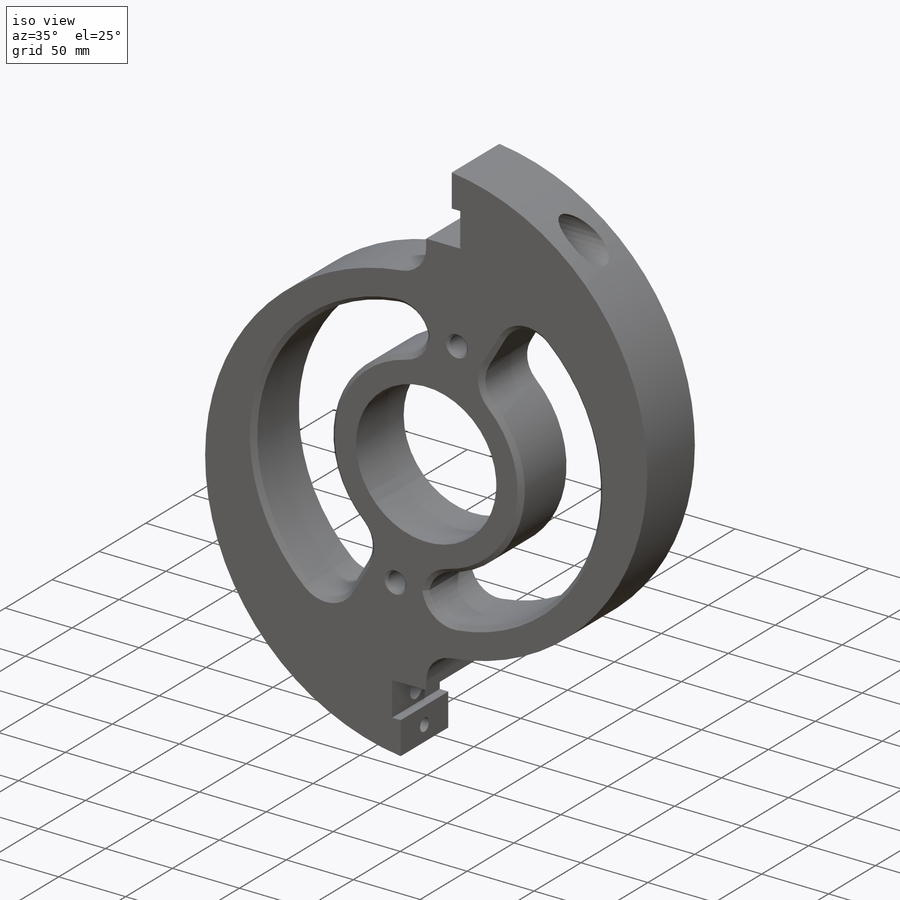
[diagram: iso view]
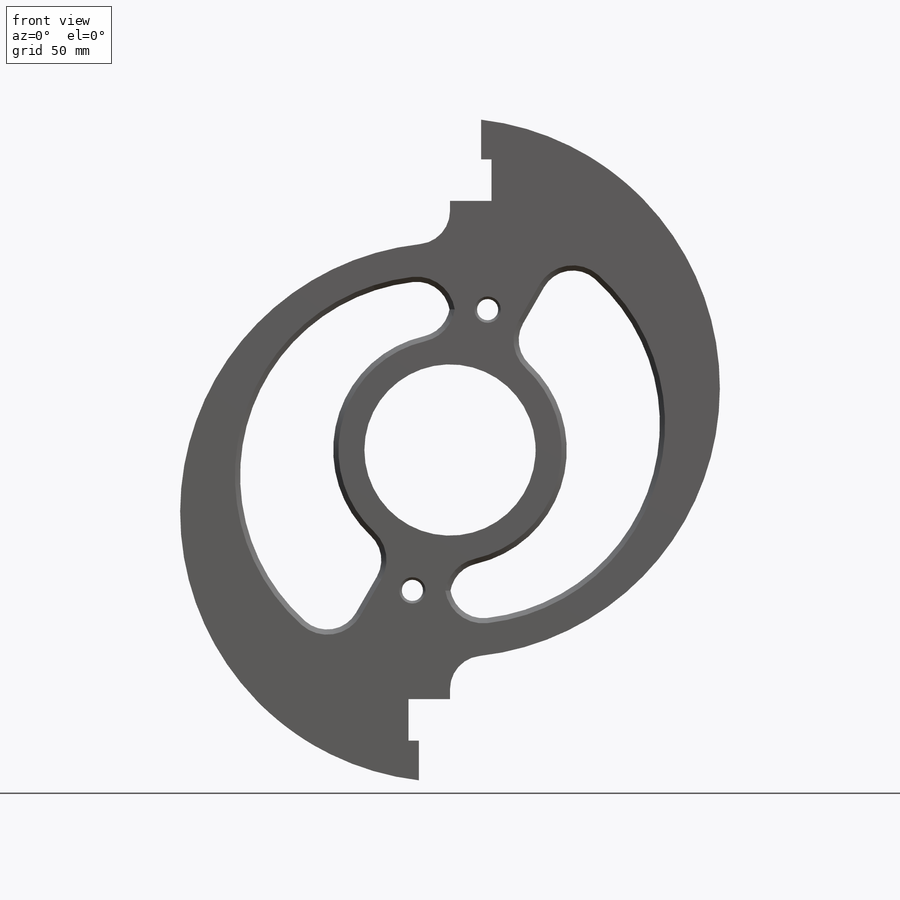
[diagram: front view]
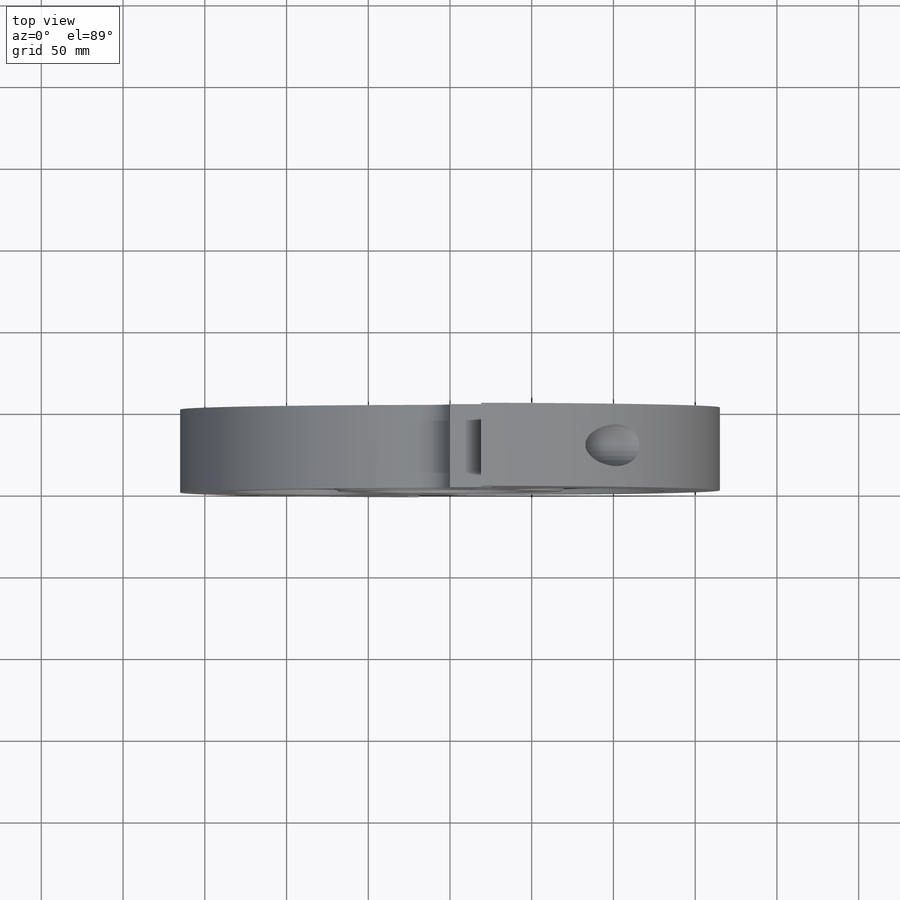
[diagram: top view]
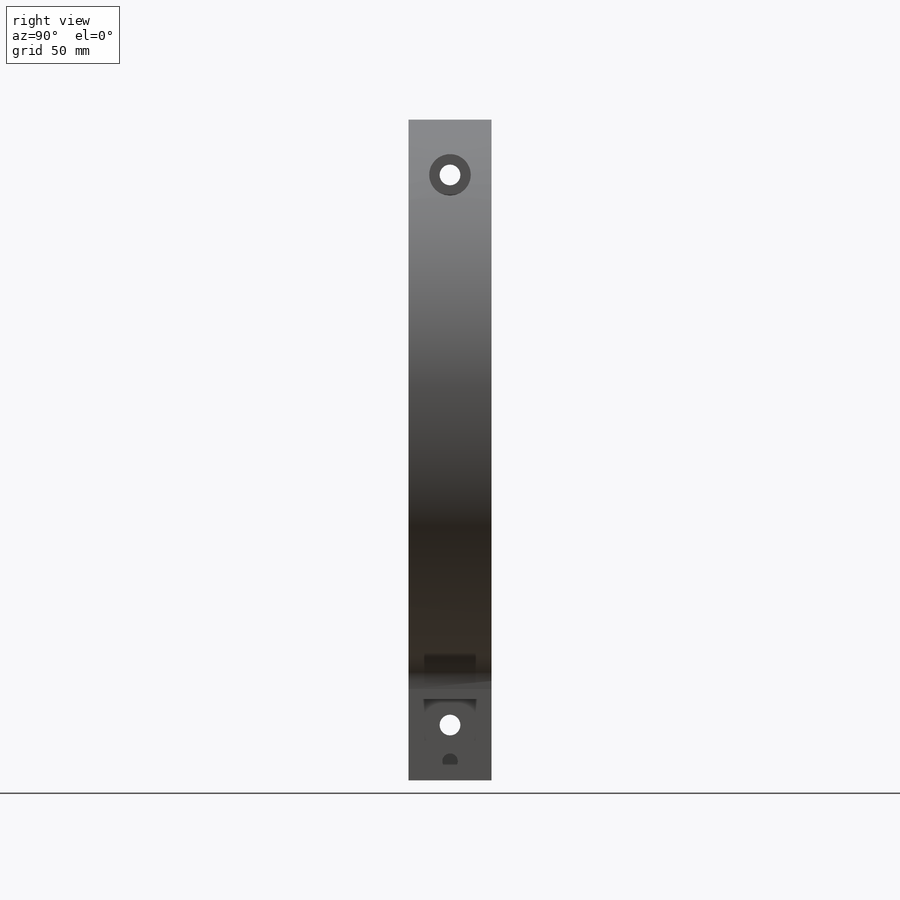
[diagram: right view]
SOLIDWORKS PART (.sldprt)
format: sldprt  version: not decoded by parser v0  size: 441,856 bytes
history: native  units: mm
features: sketch x8, cut_extrude x7, chamfer x2, material x1, extrude x1, fillet x1, pattern_circular x1 (+13 scaffold rows collapsed)
feature tree (34):
  scaffold x13  (default folders/planes/origin — collapsed)
  material  "Plain Carbon Steel"
  sketch  "Sketch1"  dims[D1=406.4mm D2=104.775mm D3=76.2mm D4=76.2mm]
  extrude  "Boss-Extrude1"  Depth=50.8mm
  sketch  "Sketch2"  dims[c1.D1=112.7125mm c1.D5=~126.20625mm c2.D1=19.05mm c2.D3=~38.494829mm c3.D3=30.0deg c3.D4=44.45mm c4.D4=30.0deg c4.D5=69.85mm c4.D2=31.75mm]
  cut_extrude  "Cut-Extrude1"  Depth=50.8mm
  sketch  "Sketch4"  dims[D1=2.0]
  cut_extrude  "Cut-Extrude3"  Depth=50.8mm
  fillet  "Fillet2"  Radius=20.32mm
  chamfer  "Chamfer2"  Distance=3.175mm Angle=45deg
  sketch  "Sketch5"  dims[c1.D1=~52.411095mm c1.D2=~43.679882mm c2.D1=50.8mm c2.D2=25.4mm c2.D3=~2.142233mm c2.D4=~3.905557mm c3.D3=6.35mm]
  cut_extrude  "Cut-Extrude4"  [1 undecoded]
  sketch  "Sketch6"  dims[D1=~1.066693mm D2=15.875mm]
  cut_extrude  "Cut-Extrude5"  [1 undecoded]
  sketch  "Sketch7"  dims[c1.D1=~62.301355mm c1.D2=25.4mm c2.D1=19.05mm]
  cut_extrude  "Cut-Extrude6"  Depth=38.1mm
  sketch  "Sketch9"  dims[D1=9.525mm D2=12.7mm]
  cut_extrude  "Cut-Extrude8"  Depth=9.525mm
  pattern_circular  "CirPattern1"  Count=2 Angle=360deg
  sketch  "Sketch10"  dims[c1.D1=100.3386mm c1.D2=177.8mm c1.D3=12.954mm c2.D1=100.3386mm c3.D1=15.0deg]
  cut_extrude  "Cut-Extrude9"  [1 undecoded]
  chamfer  "Chamfer3"  Distance=1.5875mm Angle=45deg
decode coverage: 17 of 20 modeling features carry decoded parameters
note: ~ marks probable driven/reference dimensions
note: 3 parameter values undecoded
summary: no parameter record found for 3 features
note: suppression state not decoded; provenance and decode notes live in map.json
